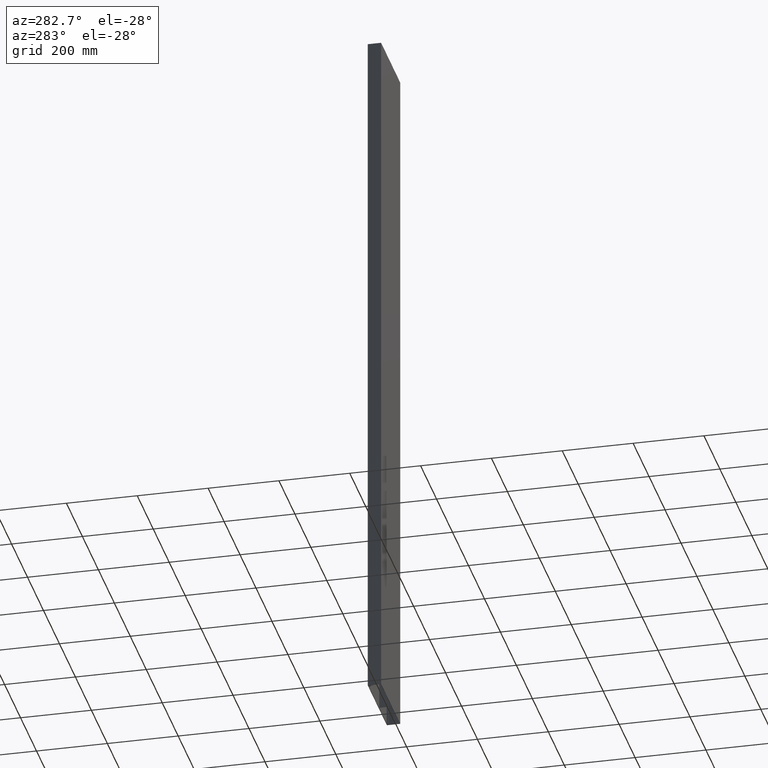
[diagram: clean part render]
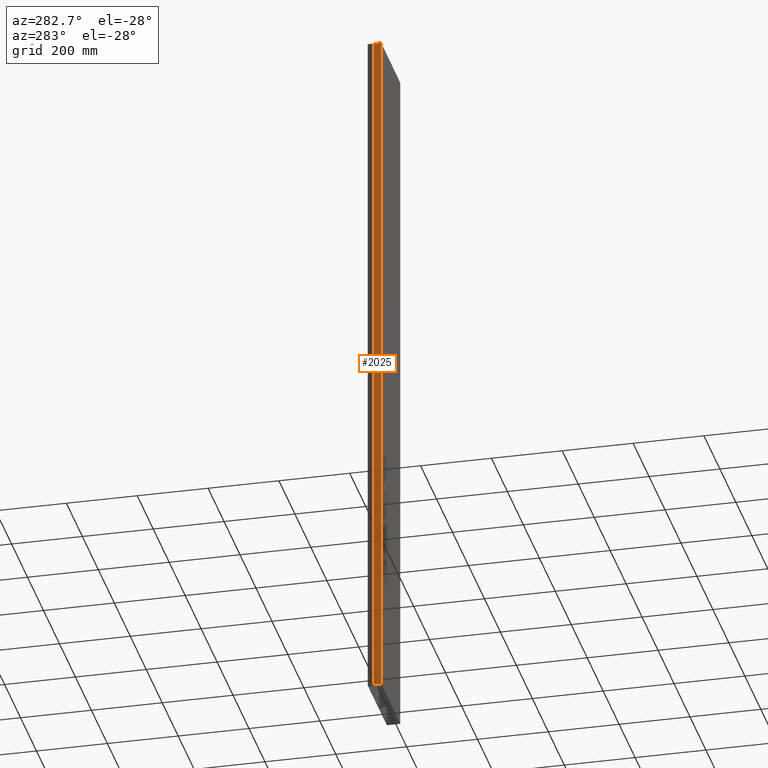
[diagram: same view with one face highlighted and labeled with its STEP entity id]
A machine part, auxiliary view. The second image highlights one B-rep face of the part: STEP entity #2025.
In plain terms, the highlighted planar face has unit normal (-1, 0, 0).
Its self-contained STEP definition (entity closure, byte-faithful):
#1483=DIRECTION('',(0.E0,-1.E0,0.E0));
#1484=VECTOR('',#1483,1.99028E1);
#1485=CARTESIAN_POINT('',(-1.2E2,1.99028E1,0.E0));
#1486=LINE('',#1485,#1484);
#1547=DIRECTION('',(0.E0,0.E0,-1.E0));
#1548=VECTOR('',#1547,2.E3);
#1549=CARTESIAN_POINT('',(-1.2E2,1.99028E1,0.E0));
#1550=LINE('',#1549,#1548);
#1551=DIRECTION('',(0.E0,0.E0,-1.E0));
#1552=VECTOR('',#1551,2.E3);
#1553=CARTESIAN_POINT('',(-1.2E2,0.E0,0.E0));
#1554=LINE('',#1553,#1552);
#1643=DIRECTION('',(0.E0,-1.E0,0.E0));
#1644=VECTOR('',#1643,1.99028E1);
#1645=CARTESIAN_POINT('',(-1.2E2,1.99028E1,-2.E3));
#1646=LINE('',#1645,#1644);
#1747=CARTESIAN_POINT('',(-1.2E2,0.E0,0.E0));
#1749=VERTEX_POINT('',#1747);
#1771=CARTESIAN_POINT('',(-1.2E2,0.E0,-2.E3));
#1773=VERTEX_POINT('',#1771);
#1809=CARTESIAN_POINT('',(-1.2E2,1.99028E1,0.E0));
#1810=VERTEX_POINT('',#1809);
#1825=CARTESIAN_POINT('',(-1.2E2,1.99028E1,-2.E3));
#1826=VERTEX_POINT('',#1825);
#2012=CARTESIAN_POINT('',(-1.2E2,1.99028E1,0.E0));
#2013=DIRECTION('',(-1.E0,0.E0,0.E0));
#2014=DIRECTION('',(0.E0,-1.E0,0.E0));
#2015=AXIS2_PLACEMENT_3D('',#2012,#2013,#2014);
#2016=PLANE('',#2015);
#2017=ORIENTED_EDGE('',*,*,#1880,.T.);
#2019=ORIENTED_EDGE('',*,*,#2018,.T.);
#2021=ORIENTED_EDGE('',*,*,#2020,.F.);
#2022=ORIENTED_EDGE('',*,*,#2004,.F.);
#2023=EDGE_LOOP('',(#2017,#2019,#2021,#2022));
#2024=FACE_OUTER_BOUND('',#2023,.F.);
#1880=EDGE_CURVE('',#1810,#1749,#1486,.T.);
#2004=EDGE_CURVE('',#1810,#1826,#1550,.T.);
#2018=EDGE_CURVE('',#1749,#1773,#1554,.T.);
#2020=EDGE_CURVE('',#1826,#1773,#1646,.T.);
#2025=ADVANCED_FACE('',(#2024),#2016,.T.);